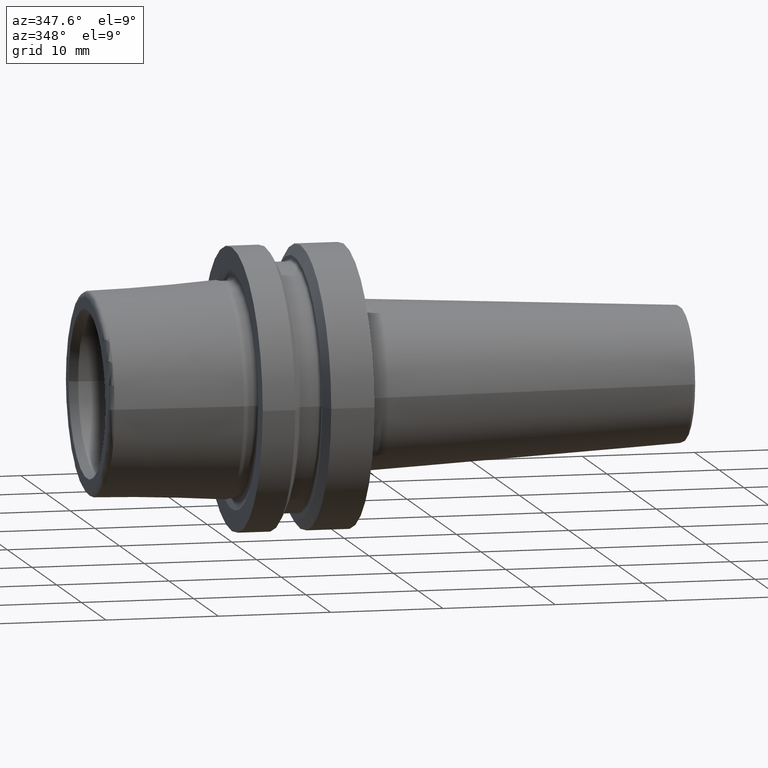
[diagram: clean part render]
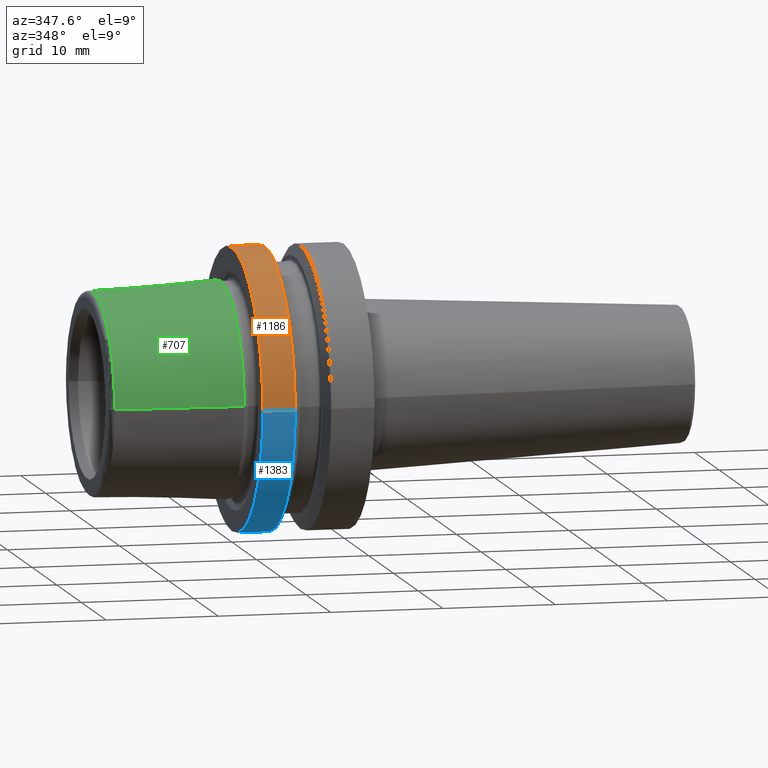
[diagram: same view with three faces highlighted in distinct colors, each labeled with its STEP entity id]
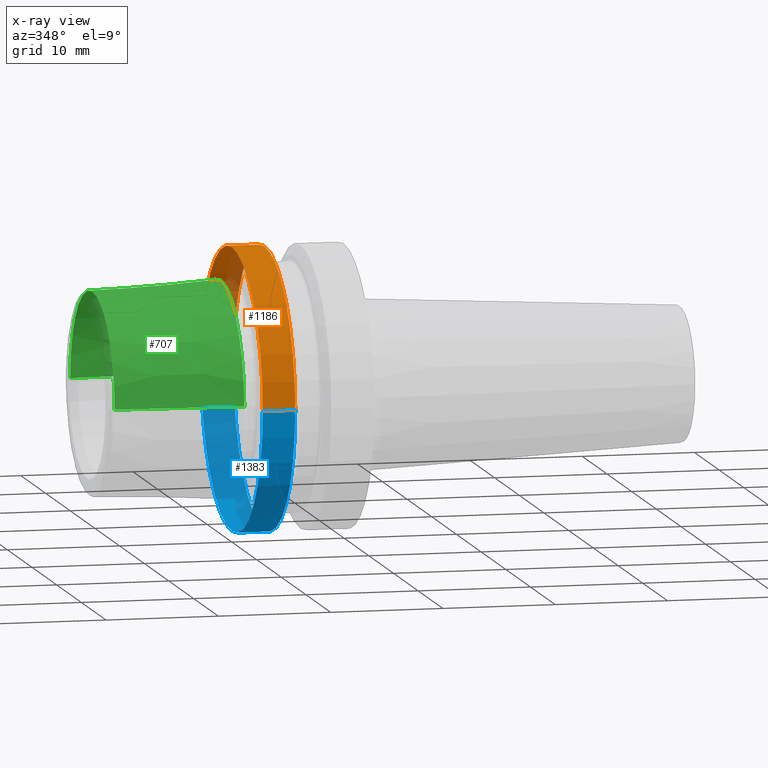
[diagram: x-ray of the same camera — body ghosted, the three highlighted faces saturated]
A machine part, auxiliary view with three faces highlighted in distinct colors.
The next image is the same camera in x-ray (body ghosted, the three faces saturated) — at least one of them is partly hidden behind the body in this view.
Their STEP definitions:

[orange] entity #1186 — the highlighted cylindrical surface (partial cylindrical patch) has radius 12.5 mm, axis along (1, 0, 0).
#294=CARTESIAN_POINT('',(0.E0,0.E0,0.E0));
#295=DIRECTION('',(1.E0,0.E0,0.E0));
#296=DIRECTION('',(0.E0,1.E0,0.E0));
#297=AXIS2_PLACEMENT_3D('',#294,#295,#296);
#324=CARTESIAN_POINT('',(2.897853002999E0,0.E0,0.E0));
#325=DIRECTION('',(1.E0,0.E0,0.E0));
#326=DIRECTION('',(0.E0,1.E0,0.E0));
#327=AXIS2_PLACEMENT_3D('',#324,#325,#326);
#456=DIRECTION('',(-1.E0,0.E0,0.E0));
#457=VECTOR('',#456,2.897853002999E0);
#458=CARTESIAN_POINT('',(2.897853002999E0,1.25E1,0.E0));
#459=LINE('',#458,#457);
#460=DIRECTION('',(-1.E0,0.E0,0.E0));
#461=VECTOR('',#460,2.897853002999E0);
#462=CARTESIAN_POINT('',(2.897853002999E0,-1.25E1,0.E0));
#463=LINE('',#462,#461);
#626=CARTESIAN_POINT('',(2.897853002999E0,1.25E1,0.E0));
#627=VERTEX_POINT('',#626);
#630=CARTESIAN_POINT('',(2.897853002999E0,-1.25E1,0.E0));
#631=VERTEX_POINT('',#630);
#636=CARTESIAN_POINT('',(0.E0,1.25E1,0.E0));
#637=CARTESIAN_POINT('',(0.E0,-1.25E1,0.E0));
#638=VERTEX_POINT('',#636);
#639=VERTEX_POINT('',#637);
#1172=CARTESIAN_POINT('',(-1.40425E1,0.E0,0.E0));
#1173=DIRECTION('',(1.E0,0.E0,0.E0));
#1174=DIRECTION('',(0.E0,-1.E0,0.E0));
#1175=AXIS2_PLACEMENT_3D('',#1172,#1173,#1174);
#1176=CYLINDRICAL_SURFACE('',#1175,1.25E1);
#1178=ORIENTED_EDGE('',*,*,#1177,.T.);
#1180=ORIENTED_EDGE('',*,*,#1179,.T.);
#1181=ORIENTED_EDGE('',*,*,#1145,.F.);
#1183=ORIENTED_EDGE('',*,*,#1182,.F.);
#1184=EDGE_LOOP('',(#1178,#1180,#1181,#1183));
#1185=FACE_OUTER_BOUND('',#1184,.F.);
#1186=ADVANCED_FACE('',(#1185),#1176,.T.);
#298=CIRCLE('',#297,1.25E1);
#328=CIRCLE('',#327,1.25E1);
#1145=EDGE_CURVE('',#638,#639,#298,.T.);
#1177=EDGE_CURVE('',#627,#631,#328,.T.);
#1179=EDGE_CURVE('',#631,#639,#463,.T.);
#1182=EDGE_CURVE('',#627,#638,#459,.T.);

[blue] entity #1383 — the highlighted cylindrical surface (partial cylindrical patch) has radius 12.5 mm, axis along (1, 0, 0).
#299=CARTESIAN_POINT('',(0.E0,0.E0,0.E0));
#300=DIRECTION('',(-1.E0,0.E0,0.E0));
#301=DIRECTION('',(0.E0,1.E0,0.E0));
#302=AXIS2_PLACEMENT_3D('',#299,#300,#301);
#451=CARTESIAN_POINT('',(2.897853002999E0,0.E0,0.E0));
#452=DIRECTION('',(1.E0,0.E0,0.E0));
#453=DIRECTION('',(0.E0,-1.E0,0.E0));
#454=AXIS2_PLACEMENT_3D('',#451,#452,#453);
#456=DIRECTION('',(-1.E0,0.E0,0.E0));
#457=VECTOR('',#456,2.897853002999E0);
#458=CARTESIAN_POINT('',(2.897853002999E0,1.25E1,0.E0));
#459=LINE('',#458,#457);
#460=DIRECTION('',(-1.E0,0.E0,0.E0));
#461=VECTOR('',#460,2.897853002999E0);
#462=CARTESIAN_POINT('',(2.897853002999E0,-1.25E1,0.E0));
#463=LINE('',#462,#461);
#626=CARTESIAN_POINT('',(2.897853002999E0,1.25E1,0.E0));
#627=VERTEX_POINT('',#626);
#630=CARTESIAN_POINT('',(2.897853002999E0,-1.25E1,0.E0));
#631=VERTEX_POINT('',#630);
#636=CARTESIAN_POINT('',(0.E0,1.25E1,0.E0));
#637=CARTESIAN_POINT('',(0.E0,-1.25E1,0.E0));
#638=VERTEX_POINT('',#636);
#639=VERTEX_POINT('',#637);
#1372=CARTESIAN_POINT('',(-1.40425E1,0.E0,0.E0));
#1373=DIRECTION('',(1.E0,0.E0,0.E0));
#1374=DIRECTION('',(0.E0,-1.E0,0.E0));
#1375=AXIS2_PLACEMENT_3D('',#1372,#1373,#1374);
#1376=CYLINDRICAL_SURFACE('',#1375,1.25E1);
#1377=ORIENTED_EDGE('',*,*,#1339,.T.);
#1378=ORIENTED_EDGE('',*,*,#1182,.T.);
#1379=ORIENTED_EDGE('',*,*,#1147,.T.);
#1380=ORIENTED_EDGE('',*,*,#1179,.F.);
#1381=EDGE_LOOP('',(#1377,#1378,#1379,#1380));
#1382=FACE_OUTER_BOUND('',#1381,.F.);
#1383=ADVANCED_FACE('',(#1382),#1376,.T.);
#303=CIRCLE('',#302,1.25E1);
#455=CIRCLE('',#454,1.25E1);
#1147=EDGE_CURVE('',#638,#639,#303,.T.);
#1179=EDGE_CURVE('',#631,#639,#463,.T.);
#1182=EDGE_CURVE('',#627,#638,#459,.T.);
#1339=EDGE_CURVE('',#631,#627,#455,.T.);

[green] entity #707 — the highlighted conical surface has half-angle 2.845 deg.
#2=CARTESIAN_POINT('',(-1.E0,0.E0,0.E0));
#3=DIRECTION('',(1.E0,0.E0,0.E0));
#4=DIRECTION('',(0.E0,1.E0,0.E0));
#5=AXIS2_PLACEMENT_3D('',#2,#3,#4);
#30=DIRECTION('',(-9.987676191710E-1,-4.963106784496E-2,0.E0));
#31=VECTOR('',#30,1.143891263055E1);
#32=CARTESIAN_POINT('',(-1.E0,9.577538461538E0,0.E0));
#33=LINE('',#32,#31);
#34=DIRECTION('',(-9.987676191710E-1,4.963106784496E-2,0.E0));
#35=VECTOR('',#34,1.143891263055E1);
#36=CARTESIAN_POINT('',(-1.E0,-9.577538461538E0,0.E0));
#37=LINE('',#36,#35);
#53=CARTESIAN_POINT('',(-1.242481553392E1,0.E0,0.E0));
#54=DIRECTION('',(1.E0,0.E0,0.E0));
#55=DIRECTION('',(0.E0,1.E0,0.E0));
#56=AXIS2_PLACEMENT_3D('',#53,#54,#55);
#576=CARTESIAN_POINT('',(-1.E0,9.577538461538E0,0.E0));
#577=CARTESIAN_POINT('',(-1.E0,-9.577538461538E0,0.E0));
#578=VERTEX_POINT('',#576);
#579=VERTEX_POINT('',#577);
#580=CARTESIAN_POINT('',(-1.242481553392E1,9.009813012699E0,0.E0));
#581=VERTEX_POINT('',#580);
#582=CARTESIAN_POINT('',(-1.242481553392E1,-9.009813012699E0,0.E0));
#583=VERTEX_POINT('',#582);
#692=CARTESIAN_POINT('',(-6.712407766961E0,0.E0,0.E0));
#693=DIRECTION('',(1.E0,0.E0,0.E0));
#694=DIRECTION('',(0.E0,-1.E0,0.E0));
#695=AXIS2_PLACEMENT_3D('',#692,#693,#694);
#696=CONICAL_SURFACE('',#695,9.293675737119E0,2.844819449936E0);
#698=ORIENTED_EDGE('',*,*,#697,.T.);
#700=ORIENTED_EDGE('',*,*,#699,.T.);
#702=ORIENTED_EDGE('',*,*,#701,.F.);
#704=ORIENTED_EDGE('',*,*,#703,.F.);
#705=EDGE_LOOP('',(#698,#700,#702,#704));
#706=FACE_OUTER_BOUND('',#705,.F.);
#707=ADVANCED_FACE('',(#706),#696,.T.);
#6=CIRCLE('',#5,9.577538461538E0);
#57=CIRCLE('',#56,9.009813012699E0);
#697=EDGE_CURVE('',#578,#579,#6,.T.);
#699=EDGE_CURVE('',#579,#583,#37,.T.);
#701=EDGE_CURVE('',#581,#583,#57,.T.);
#703=EDGE_CURVE('',#578,#581,#33,.T.);